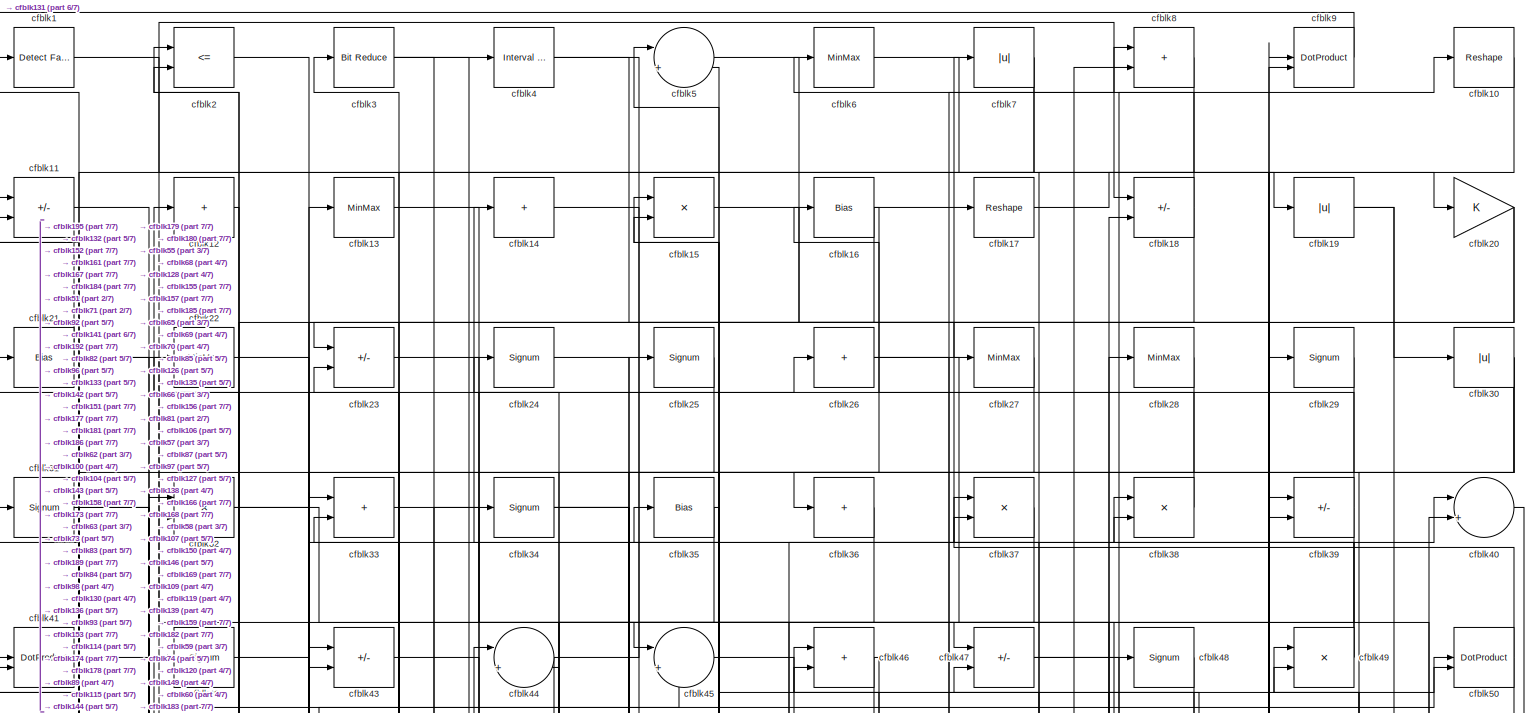
[diagram: root canvas - part 1/7, full width, top band]
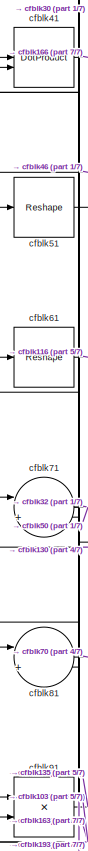
[diagram: root canvas - part 2/7, middle left region]
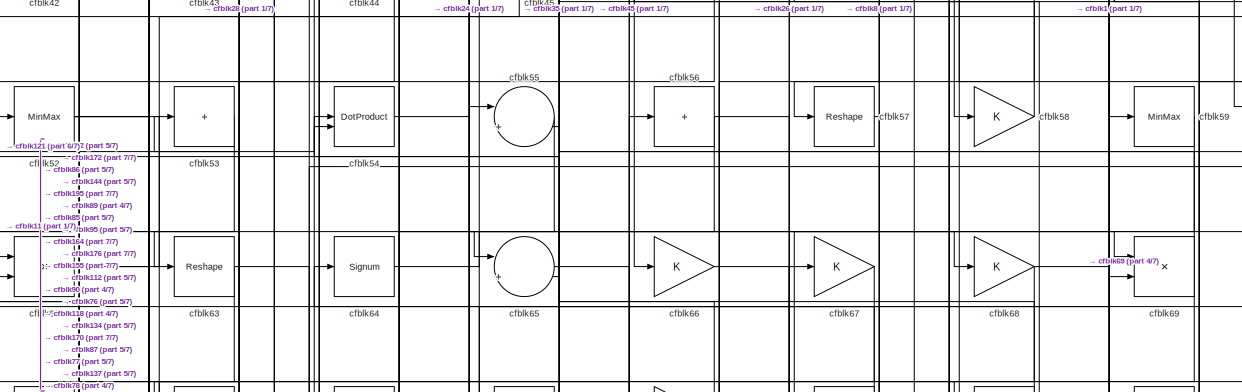
[diagram: root canvas - part 3/7, full width, top band]
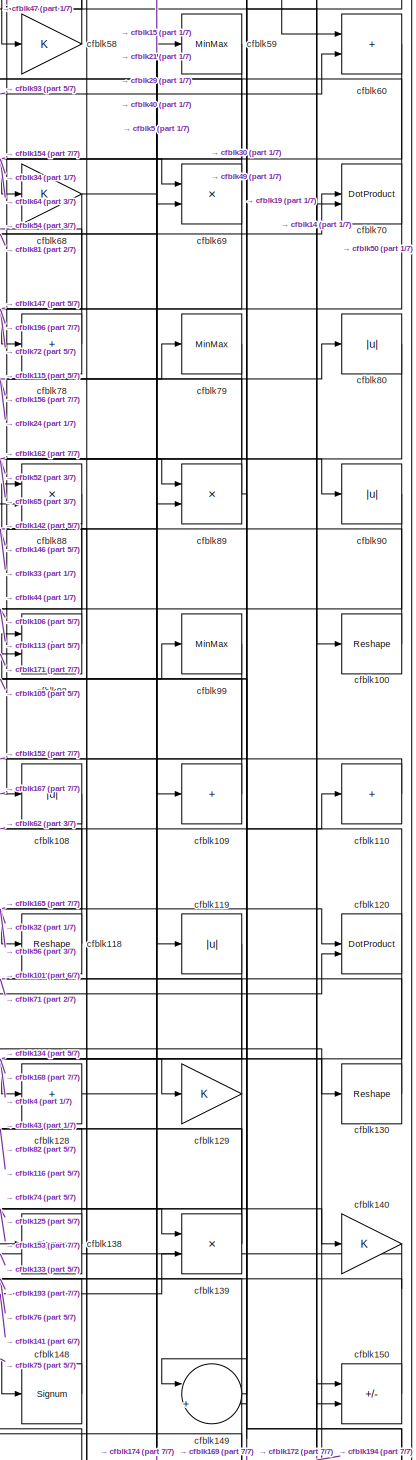
[diagram: root canvas - part 4/7, middle right region]
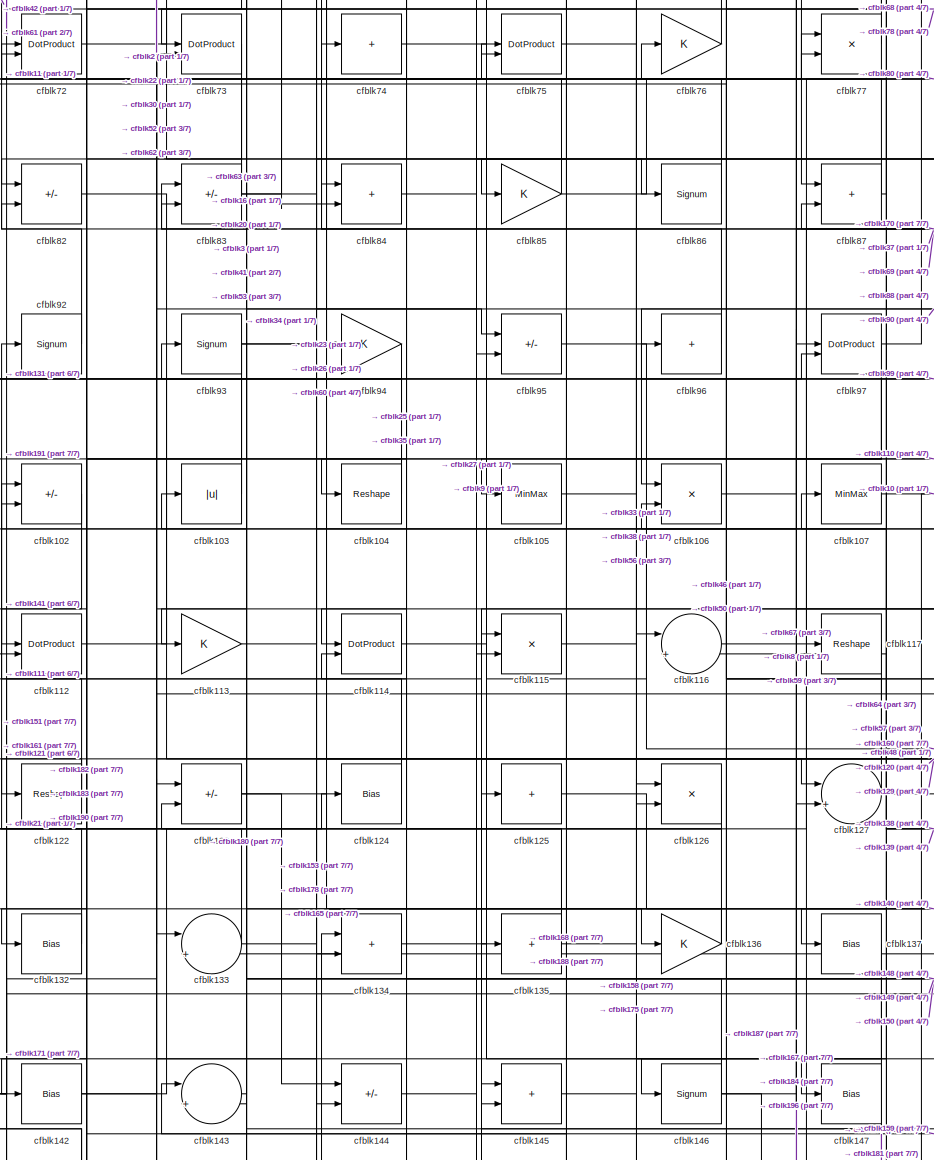
[diagram: root canvas - part 5/7, central region]
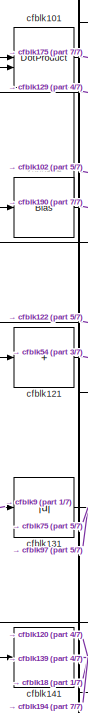
[diagram: root canvas - part 6/7, middle left region]
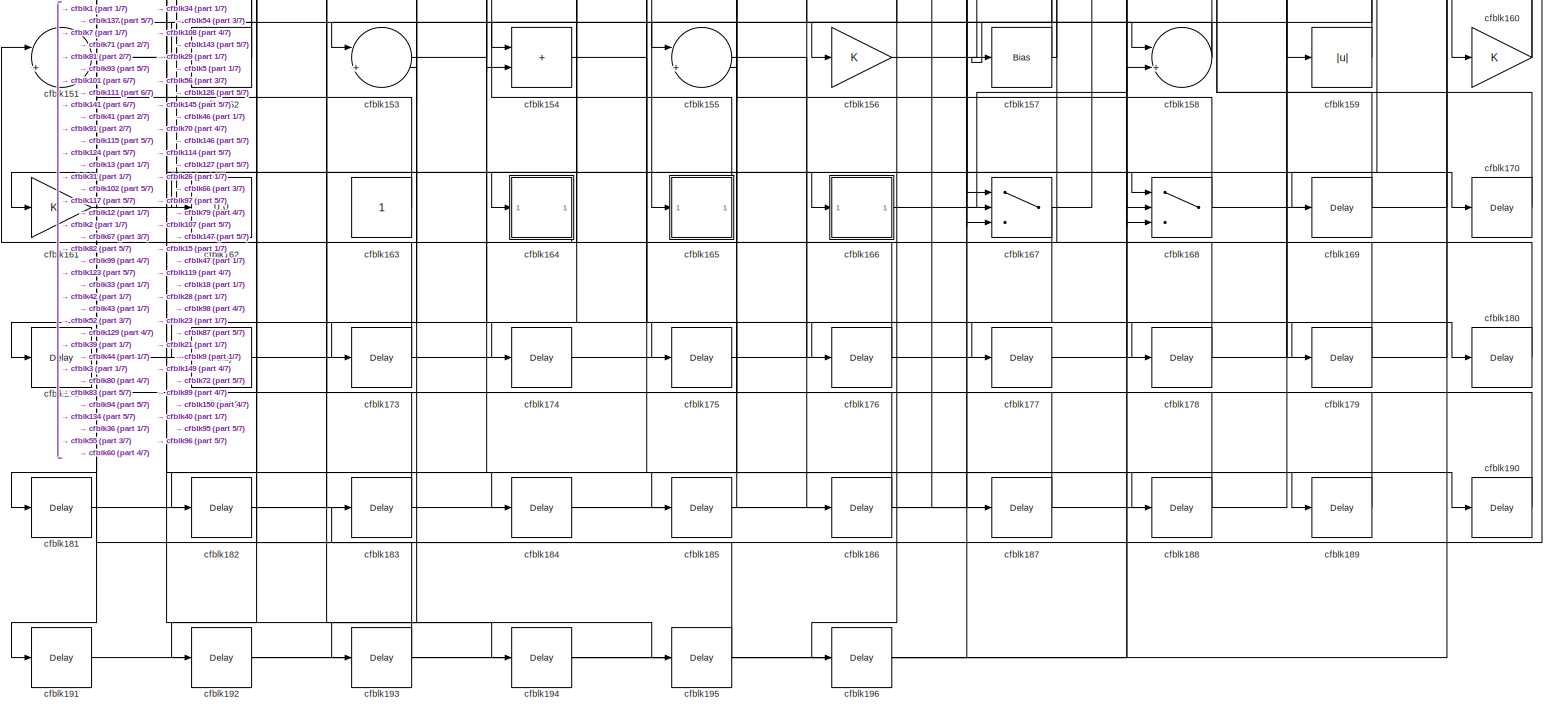
[diagram: root canvas - part 7/7, full width, bottom band]
MODEL slx_34134e683c51
KIND model
CONFIG AbsTol = auto
CONFIG EnableMultiTasking = off
CONFIG FixedStep = auto
CONFIG MaxStep = auto
CONFIG MinStep = auto
CONFIG RelTol = 1e-3
CONFIG SampleTimeConstraint = Unconstrained
CONFIG SolverName = VariableStepAuto
CONFIG StartTime = 0.0
CONFIG StopTime = 10.0
BLOCK [Reference] cfblk1  REF=hdlsllib/Logic and Bit
Operations/Detect Fall
Nonpositive
  SourceBlock = hdlsllib/Logic and Bit\nOperations/Detect Fall\nNonpositive
  SourceType = Detect Fall Nonpositive
BLOCK [Reshape] cfblk10
BLOCK [Reshape] cfblk100
BLOCK [DotProduct] cfblk101
  OutDataTypeStr = Inherit: Inherit via internal rule
BLOCK [Sum] cfblk102
  IconShape = rectangular
  Inputs = +-
BLOCK [Abs] cfblk103
  SaturateOnIntegerOverflow = off
BLOCK [Reshape] cfblk104
BLOCK [MinMax] cfblk105
BLOCK [Product] cfblk106
  Inputs = */
  RndMeth = Zero
  SaturateOnIntegerOverflow = on
BLOCK [MinMax] cfblk107
BLOCK [Abs] cfblk108
  SaturateOnIntegerOverflow = off
BLOCK [Sum] cfblk109
  IconShape = rectangular
  Inputs = +
BLOCK [Sum] cfblk11
  IconShape = rectangular
  Inputs = +-
BLOCK [Sum] cfblk110
  IconShape = rectangular
  Inputs = +
BLOCK [Bias] cfblk111
  Bias = 0.0
  SaturateOnIntegerOverflow = off
BLOCK [DotProduct] cfblk112
  OutDataTypeStr = Inherit: Inherit via internal rule
BLOCK [Gain] cfblk113
BLOCK [DotProduct] cfblk114
  OutDataTypeStr = Inherit: Inherit via internal rule
BLOCK [Product] cfblk115
  Inputs = */
  RndMeth = Zero
  SaturateOnIntegerOverflow = on
BLOCK [Sum] cfblk116
  Inputs = |++
BLOCK [Reshape] cfblk117
BLOCK [Reshape] cfblk118
BLOCK [Abs] cfblk119
  SaturateOnIntegerOverflow = off
BLOCK [Sum] cfblk12
  IconShape = rectangular
  Inputs = +
BLOCK [DotProduct] cfblk120
  OutDataTypeStr = Inherit: Inherit via internal rule
BLOCK [Sum] cfblk121
  IconShape = rectangular
  Inputs = +
BLOCK [Reshape] cfblk122
BLOCK [Sum] cfblk123
  IconShape = rectangular
  Inputs = +-
BLOCK [Bias] cfblk124
  Bias = 0.0
  SaturateOnIntegerOverflow = off
BLOCK [Sum] cfblk125
  IconShape = rectangular
  Inputs = +
BLOCK [Product] cfblk126
  Inputs = */
  RndMeth = Zero
  SaturateOnIntegerOverflow = on
BLOCK [Sum] cfblk127
  Inputs = |++
BLOCK [Sum] cfblk128
  IconShape = rectangular
  Inputs = +
BLOCK [Gain] cfblk129
BLOCK [MinMax] cfblk13
BLOCK [Reshape] cfblk130
BLOCK [Abs] cfblk131
  SaturateOnIntegerOverflow = off
BLOCK [Bias] cfblk132
  Bias = 0.0
  SaturateOnIntegerOverflow = off
BLOCK [Sum] cfblk133
  Inputs = |++
BLOCK [Sum] cfblk134
  IconShape = rectangular
BLOCK [Sum] cfblk135
  IconShape = rectangular
  Inputs = +
BLOCK [Gain] cfblk136
BLOCK [Bias] cfblk137
  Bias = 0.0
  SaturateOnIntegerOverflow = off
BLOCK [Signum] cfblk138
BLOCK [Product] cfblk139
  Inputs = */
  RndMeth = Zero
  SaturateOnIntegerOverflow = on
BLOCK [Sum] cfblk14
  IconShape = rectangular
  Inputs = +
BLOCK [Gain] cfblk140
BLOCK [Sum] cfblk141
  IconShape = rectangular
  Inputs = +
BLOCK [Bias] cfblk142
  Bias = 0.0
  SaturateOnIntegerOverflow = off
BLOCK [Sum] cfblk143
  Inputs = |++
BLOCK [Sum] cfblk144
  IconShape = rectangular
  Inputs = +-
BLOCK [Sum] cfblk145
  IconShape = rectangular
BLOCK [Signum] cfblk146
BLOCK [Bias] cfblk147
  Bias = 0.0
  SaturateOnIntegerOverflow = off
BLOCK [Signum] cfblk148
BLOCK [Sum] cfblk149
  Inputs = |++
BLOCK [Product] cfblk15
  Inputs = */
  RndMeth = Zero
  SaturateOnIntegerOverflow = on
BLOCK [Sum] cfblk150
  IconShape = rectangular
  Inputs = +-
BLOCK [Sum] cfblk151
  Inputs = |++
BLOCK [Sum] cfblk152
  IconShape = rectangular
  Inputs = +
BLOCK [Sum] cfblk153
  Inputs = |++
BLOCK [Sum] cfblk154
  IconShape = rectangular
BLOCK [Sum] cfblk155
  Inputs = |++
BLOCK [Gain] cfblk156
BLOCK [Bias] cfblk157
  Bias = 0.0
  SaturateOnIntegerOverflow = off
BLOCK [Sum] cfblk158
  Inputs = |++
BLOCK [Abs] cfblk159
  SaturateOnIntegerOverflow = off
BLOCK [Bias] cfblk16
  Bias = 0.0
  SaturateOnIntegerOverflow = off
BLOCK [Gain] cfblk160
BLOCK [Gain] cfblk161
BLOCK [Display] cfblk162
  Decimation = 1
BLOCK [Constant] cfblk163
  SampleTime = -1
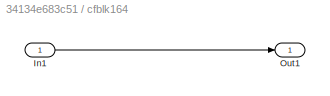
BLOCK [SubSystem] cfblk164
  LibrarySourceBlock = hdlsllib/Ports &\nSubsystems/Subsystem
BLOCK [Inport] cfblk164/In1
BLOCK [Outport] cfblk164/Out1
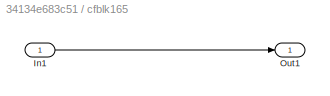
BLOCK [SubSystem] cfblk165
  LibrarySourceBlock = hdlsllib/Ports &\nSubsystems/Subsystem
BLOCK [Inport] cfblk165/In1
BLOCK [Outport] cfblk165/Out1
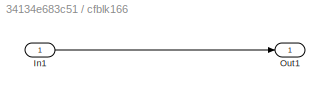
BLOCK [SubSystem] cfblk166
  LibrarySourceBlock = hdlsllib/Ports &\nSubsystems/Subsystem
BLOCK [Inport] cfblk166/In1
BLOCK [Outport] cfblk166/Out1
BLOCK [Switch] cfblk167
  InputSameDT = off
  SaturateOnIntegerOverflow = off
BLOCK [Switch] cfblk168
  InputSameDT = off
  SaturateOnIntegerOverflow = off
BLOCK [Delay] cfblk169
  InputPortMap = u0
  SampleTime = 1
BLOCK [Reshape] cfblk17
BLOCK [Delay] cfblk170
  InputPortMap = u0
  SampleTime = 1
BLOCK [Delay] cfblk171
  InputPortMap = u0
  SampleTime = 1
BLOCK [Delay] cfblk172
  InputPortMap = u0
  SampleTime = 1
BLOCK [Delay] cfblk173
  InputPortMap = u0
  SampleTime = 1
BLOCK [Delay] cfblk174
  InputPortMap = u0
  SampleTime = 1
BLOCK [Delay] cfblk175
  InputPortMap = u0
  SampleTime = 1
BLOCK [Delay] cfblk176
  InputPortMap = u0
  SampleTime = 1
BLOCK [Delay] cfblk177
  InputPortMap = u0
  SampleTime = 1
BLOCK [Delay] cfblk178
  InputPortMap = u0
  SampleTime = 1
BLOCK [Delay] cfblk179
  InputPortMap = u0
  SampleTime = 1
BLOCK [Sum] cfblk18
  IconShape = rectangular
  Inputs = +-
BLOCK [Delay] cfblk180
  InputPortMap = u0
  SampleTime = 1
BLOCK [Delay] cfblk181
  InputPortMap = u0
  SampleTime = 1
BLOCK [Delay] cfblk182
  InputPortMap = u0
  SampleTime = 1
BLOCK [Delay] cfblk183
  InputPortMap = u0
  SampleTime = 1
BLOCK [Delay] cfblk184
  InputPortMap = u0
  SampleTime = 1
BLOCK [Delay] cfblk185
  InputPortMap = u0
  SampleTime = 1
BLOCK [Delay] cfblk186
  InputPortMap = u0
  SampleTime = 1
BLOCK [Delay] cfblk187
  InputPortMap = u0
  SampleTime = 1
BLOCK [Delay] cfblk188
  InputPortMap = u0
  SampleTime = 1
BLOCK [Delay] cfblk189
  InputPortMap = u0
  SampleTime = 1
BLOCK [Abs] cfblk19
  SaturateOnIntegerOverflow = off
BLOCK [Delay] cfblk190
  InputPortMap = u0
  SampleTime = 1
BLOCK [Delay] cfblk191
  InputPortMap = u0
  SampleTime = 1
BLOCK [Delay] cfblk192
  InputPortMap = u0
  SampleTime = 1
BLOCK [Delay] cfblk193
  InputPortMap = u0
  SampleTime = 1
BLOCK [Delay] cfblk194
  InputPortMap = u0
  SampleTime = 1
BLOCK [Delay] cfblk195
  InputPortMap = u0
  SampleTime = 1
BLOCK [Delay] cfblk196
  InputPortMap = u0
  SampleTime = 1
BLOCK [RelationalOperator] cfblk2
  InputSameDT = off
  Operator = <=
  OutDataTypeStr = boolean
BLOCK [Gain] cfblk20
BLOCK [Bias] cfblk21
  Bias = 0.0
  SaturateOnIntegerOverflow = off
BLOCK [MinMax] cfblk22
BLOCK [Sum] cfblk23
  IconShape = rectangular
  Inputs = +-
BLOCK [Signum] cfblk24
BLOCK [Signum] cfblk25
BLOCK [Sum] cfblk26
  IconShape = rectangular
  Inputs = +
BLOCK [MinMax] cfblk27
BLOCK [MinMax] cfblk28
BLOCK [Signum] cfblk29
BLOCK [Reference] cfblk3  REF=hdlsllib/Logic and Bit
Operations/Bit Reduce
  SourceBlock = hdlsllib/Logic and Bit\nOperations/Bit Reduce
  SourceType = Bit Reduce
BLOCK [Abs] cfblk30
  SaturateOnIntegerOverflow = off
BLOCK [Signum] cfblk31
BLOCK [Product] cfblk32
  Inputs = */
  RndMeth = Zero
  SaturateOnIntegerOverflow = on
BLOCK [Sum] cfblk33
  IconShape = rectangular
BLOCK [Signum] cfblk34
BLOCK [Bias] cfblk35
  Bias = 0.0
  SaturateOnIntegerOverflow = off
BLOCK [Sum] cfblk36
  IconShape = rectangular
  Inputs = +
BLOCK [Product] cfblk37
  Inputs = */
  RndMeth = Zero
  SaturateOnIntegerOverflow = on
BLOCK [Product] cfblk38
  Inputs = */
  RndMeth = Zero
  SaturateOnIntegerOverflow = on
BLOCK [Sum] cfblk39
  IconShape = rectangular
  Inputs = +-
BLOCK [Reference] cfblk4  REF=hdlsllib/Logic and Bit
Operations/Interval Test
  SourceBlock = hdlsllib/Logic and Bit\nOperations/Interval Test
  SourceType = Interval Test
BLOCK [Sum] cfblk40
  Inputs = |++
BLOCK [DotProduct] cfblk41
  OutDataTypeStr = Inherit: Inherit via internal rule
BLOCK [Signum] cfblk42
BLOCK [Sum] cfblk43
  IconShape = rectangular
  Inputs = +-
BLOCK [Sum] cfblk44
  Inputs = |++
BLOCK [Sum] cfblk45
  Inputs = |++
BLOCK [Sum] cfblk46
  IconShape = rectangular
BLOCK [Sum] cfblk47
  IconShape = rectangular
  Inputs = +-
BLOCK [Signum] cfblk48
BLOCK [Product] cfblk49
  Inputs = */
  RndMeth = Zero
  SaturateOnIntegerOverflow = on
BLOCK [Sum] cfblk5
  Inputs = |++
BLOCK [DotProduct] cfblk50
  OutDataTypeStr = Inherit: Inherit via internal rule
BLOCK [Reshape] cfblk51
BLOCK [MinMax] cfblk52
BLOCK [Sum] cfblk53
  IconShape = rectangular
  Inputs = +
BLOCK [DotProduct] cfblk54
  OutDataTypeStr = Inherit: Inherit via internal rule
BLOCK [Sum] cfblk55
  Inputs = |++
BLOCK [Sum] cfblk56
  IconShape = rectangular
  Inputs = +
BLOCK [Reshape] cfblk57
BLOCK [Gain] cfblk58
BLOCK [MinMax] cfblk59
BLOCK [MinMax] cfblk6
BLOCK [Sum] cfblk60
  IconShape = rectangular
BLOCK [Reshape] cfblk61
BLOCK [Product] cfblk62
  Inputs = */
  RndMeth = Zero
  SaturateOnIntegerOverflow = on
BLOCK [Reshape] cfblk63
BLOCK [Signum] cfblk64
BLOCK [Sum] cfblk65
  Inputs = |++
BLOCK [Gain] cfblk66
BLOCK [Gain] cfblk67
BLOCK [Gain] cfblk68
BLOCK [Product] cfblk69
  Inputs = */
  RndMeth = Zero
  SaturateOnIntegerOverflow = on
BLOCK [Abs] cfblk7
  SaturateOnIntegerOverflow = off
BLOCK [DotProduct] cfblk70
  OutDataTypeStr = Inherit: Inherit via internal rule
BLOCK [Sum] cfblk71
  Inputs = |++
BLOCK [DotProduct] cfblk72
  OutDataTypeStr = Inherit: Inherit via internal rule
BLOCK [DotProduct] cfblk73
  OutDataTypeStr = Inherit: Inherit via internal rule
BLOCK [Sum] cfblk74
  IconShape = rectangular
  Inputs = +
BLOCK [DotProduct] cfblk75
  OutDataTypeStr = Inherit: Inherit via internal rule
BLOCK [Gain] cfblk76
BLOCK [Product] cfblk77
  Inputs = */
  RndMeth = Zero
  SaturateOnIntegerOverflow = on
BLOCK [Sum] cfblk78
  IconShape = rectangular
  Inputs = +
BLOCK [MinMax] cfblk79
BLOCK [Sum] cfblk8
  IconShape = rectangular
BLOCK [Abs] cfblk80
  SaturateOnIntegerOverflow = off
BLOCK [Sum] cfblk81
  Inputs = |++
BLOCK [Sum] cfblk82
  IconShape = rectangular
  Inputs = +-
BLOCK [Sum] cfblk83
  IconShape = rectangular
  Inputs = +-
BLOCK [Sum] cfblk84
  IconShape = rectangular
BLOCK [Gain] cfblk85
BLOCK [Signum] cfblk86
BLOCK [Sum] cfblk87
  IconShape = rectangular
BLOCK [Product] cfblk88
  Inputs = */
  RndMeth = Zero
  SaturateOnIntegerOverflow = on
BLOCK [Product] cfblk89
  Inputs = */
  RndMeth = Zero
  SaturateOnIntegerOverflow = on
BLOCK [DotProduct] cfblk9
  OutDataTypeStr = Inherit: Inherit via internal rule
BLOCK [Abs] cfblk90
  SaturateOnIntegerOverflow = off
BLOCK [Product] cfblk91
  Inputs = */
  RndMeth = Zero
  SaturateOnIntegerOverflow = on
BLOCK [Signum] cfblk92
BLOCK [Signum] cfblk93
BLOCK [Gain] cfblk94
BLOCK [Sum] cfblk95
  IconShape = rectangular
  Inputs = +-
BLOCK [Sum] cfblk96
  IconShape = rectangular
  Inputs = +
BLOCK [DotProduct] cfblk97
  OutDataTypeStr = Inherit: Inherit via internal rule
BLOCK [Sum] cfblk98
  IconShape = rectangular
BLOCK [MinMax] cfblk99
LINE cfblk100:1 -> cfblk33:2
LINE cfblk101:1 -> cfblk175:1
LINE cfblk102:1 -> cfblk141:1
LINE cfblk103:1 -> cfblk61:1
NET cfblk104:1 -> cfblk3:1, cfblk41:2
LINE cfblk105:1 -> cfblk99:1
LINE cfblk106:1 -> cfblk8:1
LINE cfblk107:1 -> cfblk10:1
LINE cfblk108:1 -> cfblk165:1
LINE cfblk109:1 -> cfblk98:1
LINE cfblk10:1 -> cfblk39:2
LINE cfblk110:1 -> cfblk105:1
NET cfblk111:1 -> cfblk101:2, cfblk190:1
LINE cfblk112:1 -> cfblk56:1
LINE cfblk113:1 -> cfblk110:1
LINE cfblk114:1 -> cfblk167:1
LINE cfblk115:1 -> cfblk80:1
LINE cfblk116:1 -> cfblk117:1
LINE cfblk117:1 -> cfblk182:1
LINE cfblk118:1 -> cfblk62:1
LINE cfblk119:1 -> cfblk168:2
LINE cfblk11:1 -> cfblk65:1
NET cfblk120:1 -> cfblk134:2, cfblk49:1
LINE cfblk121:1 -> cfblk54:1
NET cfblk122:1 -> cfblk111:1, cfblk121:1
NET cfblk123:1 -> cfblk144:1, cfblk145:1
LINE cfblk124:1 -> cfblk102:1
LINE cfblk125:1 -> cfblk140:1
LINE cfblk126:1 -> cfblk123:2
NET cfblk127:1 -> cfblk46:1, cfblk50:1
LINE cfblk128:1 -> cfblk29:1
NET cfblk129:1 -> cfblk101:1, cfblk153:1
LINE cfblk12:1 -> cfblk192:1
LINE cfblk130:1 -> cfblk71:1
NET cfblk131:1 -> cfblk75:1, cfblk97:2
LINE cfblk132:1 -> cfblk21:1
NET cfblk133:1 -> cfblk77:2, cfblk92:1
LINE cfblk134:1 -> cfblk67:1
NET cfblk135:1 -> cfblk38:1, cfblk41:1, cfblk84:1
NET cfblk136:1 -> cfblk135:1, cfblk75:2
LINE cfblk137:1 -> cfblk171:1
LINE cfblk138:1 -> cfblk106:2
NET cfblk139:1 -> cfblk116:2, cfblk74:1
LINE cfblk13:1 -> cfblk45:1
LINE cfblk140:1 -> cfblk133:2
NET cfblk141:1 -> cfblk120:2, cfblk139:2, cfblk18:1, cfblk194:1
NET cfblk142:1 -> cfblk37:2, cfblk69:2
LINE cfblk143:1 -> cfblk83:1
LINE cfblk144:1 -> cfblk25:1
LINE cfblk145:1 -> cfblk158:1
NET cfblk146:1 -> cfblk114:2, cfblk187:1, cfblk88:1
NET cfblk147:1 -> cfblk103:1, cfblk181:1
LINE cfblk148:1 -> cfblk93:1
NET cfblk149:1 -> cfblk193:1, cfblk49:2, cfblk72:1
LINE cfblk14:1 -> cfblk100:1
LINE cfblk150:1 -> cfblk76:1
NET cfblk151:1 -> cfblk124:1, cfblk13:1
NET cfblk152:1 -> cfblk31:1, cfblk91:1
LINE cfblk153:1 -> cfblk94:1
LINE cfblk154:1 -> cfblk188:1
LINE cfblk155:1 -> cfblk186:1
LINE cfblk156:1 -> cfblk79:1
NET cfblk157:1 -> cfblk107:1, cfblk15:2
NET cfblk158:1 -> cfblk157:1, cfblk23:2
LINE cfblk159:1 -> cfblk72:2
LINE cfblk15:1 -> cfblk119:1
NET cfblk160:1 -> cfblk91:2, cfblk96:1
LINE cfblk161:1 -> cfblk115:1
LINE cfblk163:1 -> cfblk71:2
LINE cfblk164/In1:1 -> cfblk164/Out1:1
LINE cfblk164:1 -> cfblk151:1
LINE cfblk165/In1:1 -> cfblk165/Out1:1
LINE cfblk165:1 -> cfblk134:1
LINE cfblk166/In1:1 -> cfblk166/Out1:1
LINE cfblk166:1 -> cfblk28:1
NET cfblk167:1 -> cfblk108:1, cfblk185:1
NET cfblk168:1 -> cfblk143:1, cfblk40:2
LINE cfblk169:1 -> cfblk46:2
NET cfblk16:1 -> cfblk143:2, cfblk17:1, cfblk36:1
LINE cfblk170:1 -> cfblk87:2
LINE cfblk171:1 -> cfblk98:2
LINE cfblk172:1 -> cfblk150:1
LINE cfblk173:1 -> cfblk1:1
LINE cfblk174:1 -> cfblk89:2
LINE cfblk175:1 -> cfblk126:1
LINE cfblk176:1 -> cfblk55:2
LINE cfblk177:1 -> cfblk9:1
LINE cfblk178:1 -> cfblk44:2
LINE cfblk179:1 -> cfblk47:2
LINE cfblk17:1 -> cfblk20:1
LINE cfblk180:1 -> cfblk83:2
LINE cfblk181:1 -> cfblk43:1
LINE cfblk182:1 -> cfblk39:1
LINE cfblk183:1 -> cfblk102:2
LINE cfblk184:1 -> cfblk97:1
LINE cfblk185:1 -> cfblk5:1
LINE cfblk186:1 -> cfblk33:1
LINE cfblk187:1 -> cfblk123:1
LINE cfblk188:1 -> cfblk145:2
LINE cfblk189:1 -> cfblk151:2
NET cfblk18:1 -> cfblk43:2, cfblk6:1
LINE cfblk190:1 -> cfblk82:2
LINE cfblk191:1 -> cfblk158:2
LINE cfblk192:1 -> cfblk18:2
LINE cfblk193:1 -> cfblk81:2
LINE cfblk194:1 -> cfblk70:2
LINE cfblk195:1 -> cfblk2:2
LINE cfblk196:1 -> cfblk127:2
NET cfblk19:1 -> cfblk30:1, cfblk60:1
LINE cfblk1:1 -> cfblk59:1
NET cfblk20:1 -> cfblk73:1, cfblk82:1
NET cfblk21:1 -> cfblk11:2, cfblk139:1, cfblk159:1
LINE cfblk22:1 -> cfblk133:1
LINE cfblk23:1 -> cfblk136:1
LINE cfblk24:1 -> cfblk55:1
LINE cfblk25:1 -> cfblk114:1
NET cfblk26:1 -> cfblk168:3, cfblk58:1
LINE cfblk27:1 -> cfblk115:2
LINE cfblk28:1 -> cfblk63:1
LINE cfblk29:1 -> cfblk155:1
LINE cfblk2:1 -> cfblk127:1
NET cfblk30:1 -> cfblk149:1, cfblk51:1, cfblk73:2
NET cfblk31:1 -> cfblk167:2, cfblk184:1
NET cfblk32:1 -> cfblk120:1, cfblk138:1
LINE cfblk33:1 -> cfblk126:2
NET cfblk34:1 -> cfblk179:1, cfblk180:1, cfblk68:1
NET cfblk35:1 -> cfblk104:1, cfblk65:2
LINE cfblk36:1 -> cfblk174:1
LINE cfblk37:1 -> cfblk85:1
LINE cfblk38:1 -> cfblk12:1
NET cfblk39:1 -> cfblk16:1, cfblk173:1
NET cfblk3:1 -> cfblk189:1, cfblk4:1, cfblk84:2
LINE cfblk40:1 -> cfblk183:1
LINE cfblk41:1 -> cfblk166:1
LINE cfblk42:1 -> cfblk177:1
LINE cfblk43:1 -> cfblk130:1
NET cfblk44:1 -> cfblk153:2, cfblk47:1
LINE cfblk45:1 -> cfblk66:1
NET cfblk46:1 -> cfblk156:1, cfblk81:1
NET cfblk47:1 -> cfblk150:2, cfblk8:2
LINE cfblk48:1 -> cfblk146:1
NET cfblk49:1 -> cfblk14:1, cfblk38:2
NET cfblk4:1 -> cfblk128:1, cfblk27:1
NET cfblk50:1 -> cfblk149:2, cfblk7:1
LINE cfblk51:1 -> cfblk32:2
NET cfblk52:1 -> cfblk144:2, cfblk195:1, cfblk89:1
LINE cfblk53:1 -> cfblk112:2
LINE cfblk54:1 -> cfblk176:1
LINE cfblk55:1 -> cfblk164:1
NET cfblk56:1 -> cfblk118:1, cfblk155:2
LINE cfblk57:1 -> cfblk137:1
LINE cfblk58:1 -> cfblk35:1
LINE cfblk59:1 -> cfblk87:1
LINE cfblk5:1 -> cfblk109:1
LINE cfblk60:1 -> cfblk154:1
LINE cfblk61:1 -> cfblk116:1
NET cfblk62:1 -> cfblk45:2, cfblk95:1
NET cfblk63:1 -> cfblk122:1, cfblk95:2
LINE cfblk64:1 -> cfblk69:1
LINE cfblk65:1 -> cfblk90:1
LINE cfblk66:1 -> cfblk170:1
LINE cfblk67:1 -> cfblk172:1
NET cfblk68:1 -> cfblk147:1, cfblk40:1
NET cfblk69:1 -> cfblk15:1, cfblk88:2
LINE cfblk6:1 -> cfblk19:1
NET cfblk70:1 -> cfblk196:1, cfblk5:2
NET cfblk71:1 -> cfblk32:1, cfblk50:2
LINE cfblk72:1 -> cfblk78:1
LINE cfblk73:1 -> cfblk112:1
LINE cfblk74:1 -> cfblk9:2
LINE cfblk75:1 -> cfblk148:1
LINE cfblk76:1 -> cfblk52:1
LINE cfblk77:1 -> cfblk64:1
LINE cfblk78:1 -> cfblk54:2
LINE cfblk79:1 -> cfblk162:1
NET cfblk7:1 -> cfblk161:1, cfblk23:1
LINE cfblk80:1 -> cfblk154:2
LINE cfblk81:1 -> cfblk70:1
LINE cfblk82:1 -> cfblk129:1
NET cfblk83:1 -> cfblk11:1, cfblk178:1, cfblk34:1
LINE cfblk84:1 -> cfblk86:1
NET cfblk85:1 -> cfblk53:1, cfblk77:1
LINE cfblk86:1 -> cfblk62:2
NET cfblk87:1 -> cfblk2:1, cfblk37:1
LINE cfblk88:1 -> cfblk113:1
NET cfblk89:1 -> cfblk169:1, cfblk24:1
LINE cfblk8:1 -> cfblk57:1
LINE cfblk90:1 -> cfblk106:1
LINE cfblk91:1 -> cfblk168:1
LINE cfblk92:1 -> cfblk42:1
NET cfblk93:1 -> cfblk191:1, cfblk26:1, cfblk60:2
LINE cfblk94:1 -> cfblk132:1
LINE cfblk95:1 -> cfblk160:1
LINE cfblk96:1 -> cfblk22:1
NET cfblk97:1 -> cfblk125:1, cfblk142:1, cfblk167:3, cfblk48:1
LINE cfblk98:1 -> cfblk44:1
LINE cfblk99:1 -> cfblk152:1
LINE cfblk9:1 -> cfblk131:1
note: NET lines group one-source signal fan-out (src -> all destinations, sorted); 1:1 wires keep LINE
